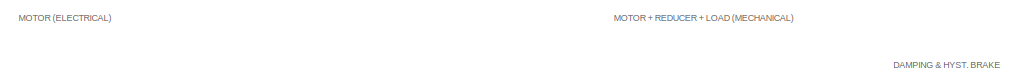
[diagram: root canvas - part 1/5, top center region]
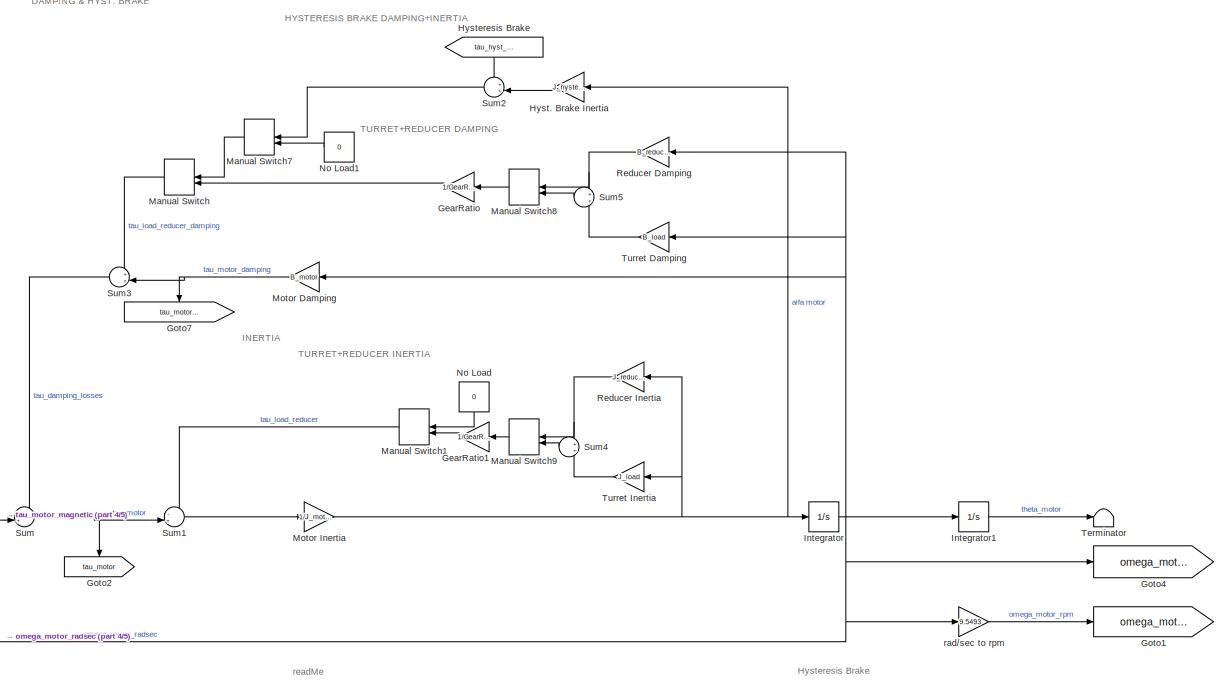
[diagram: root canvas - part 2/5, middle right region]
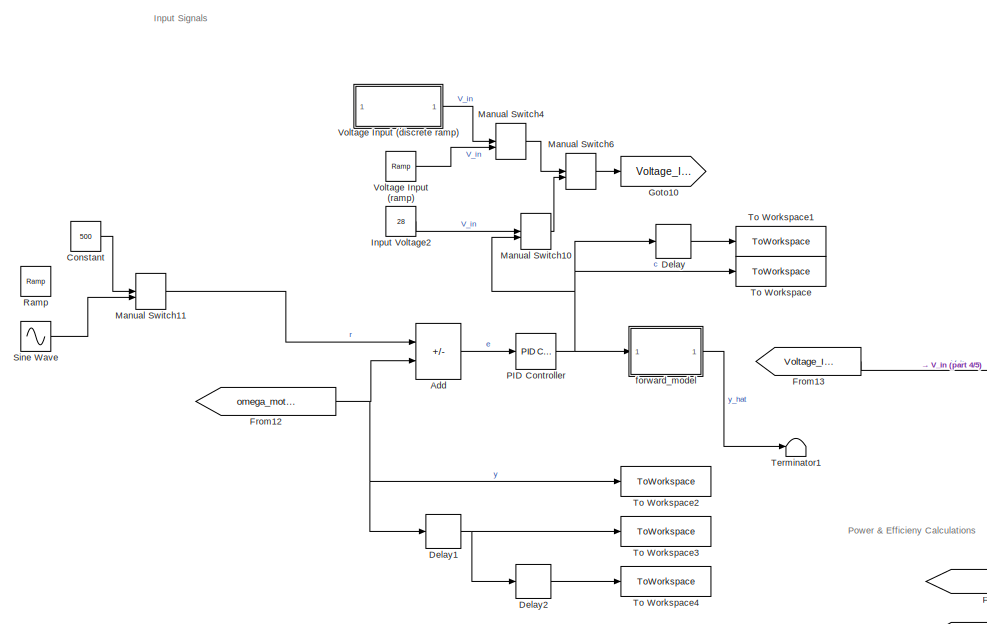
[diagram: root canvas - part 3/5, middle left region]
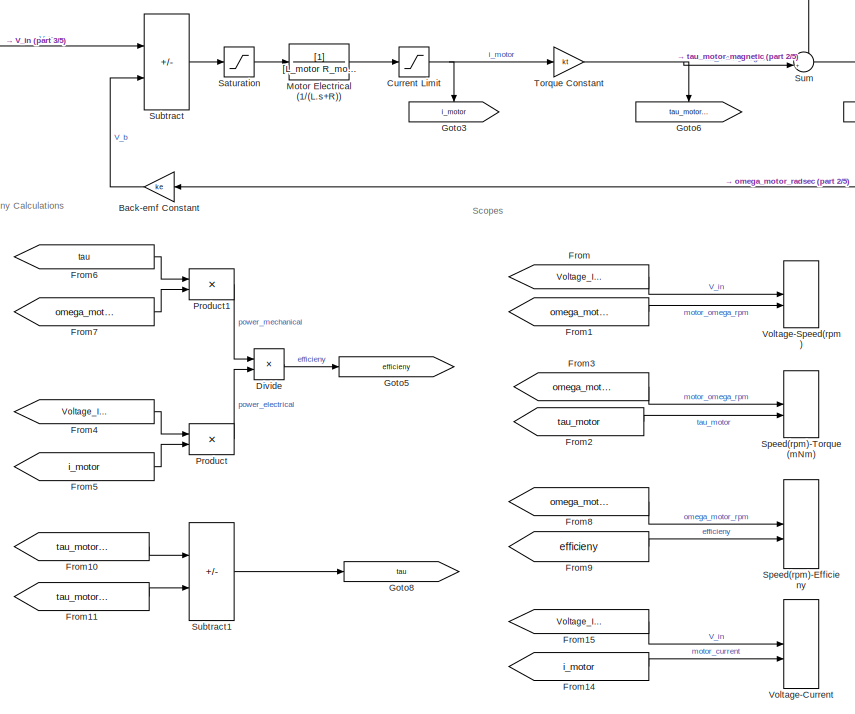
[diagram: root canvas - part 4/5, bottom center region]
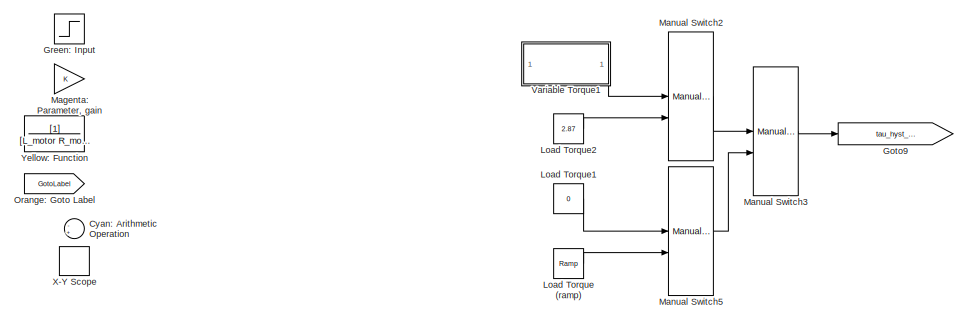
[diagram: root canvas - part 5/5, bottom right region]
MODEL slx_727cee5a9f21
KIND model
CONFIG AbsTol = auto
CONFIG EnableMultiTasking = off
CONFIG FixedStep = auto
CONFIG MaxStep = auto
CONFIG MinStep = auto
CONFIG RelTol = 1e-3
CONFIG SampleTimeConstraint = Unconstrained
CONFIG SolverName = VariableStepAuto
CONFIG StartTime = 0.0
CONFIG StopTime = 10
BLOCK [Sum] Add
  IconShape = rectangular
  Inputs = +-
BLOCK [Gain] Back-emf Constant
  Gain = ke
  NameLocation = top
BLOCK [Constant] Constant
  Value = 500
BLOCK [Saturate] Current Limit
  LowerLimit = -80
  UpperLimit = 80
BLOCK [Sum] Cyan: Arithmetic Operation
  Inputs = -+|
  NameLocation = right
BLOCK [Delay] Delay
  DelayLength = 1
  InputPortMap = u0
  SampleTime = 0.01
BLOCK [Delay] Delay1
  DelayLength = 1
  InputPortMap = u0
  SampleTime = 0.01
BLOCK [Delay] Delay2
  DelayLength = 1
  InputPortMap = u0
  SampleTime = 0.01
BLOCK [Product] Divide
  Inputs = */
BLOCK [From] From
  GotoTag = Voltage_Input
BLOCK [From] From1
  GotoTag = omega_motor_rpm
BLOCK [From] From10
  GotoTag = tau_motor_magnetic
BLOCK [From] From11
  GotoTag = tau_motor_damping
BLOCK [From] From12
  GotoTag = omega_motor_radsec
BLOCK [From] From13
  GotoTag = Voltage_Input
BLOCK [From] From14
  GotoTag = i_motor
BLOCK [From] From15
  GotoTag = Voltage_Input
BLOCK [From] From2
  GotoTag = tau_motor
BLOCK [From] From3
  GotoTag = omega_motor_rpm
BLOCK [From] From4
  GotoTag = Voltage_Input
BLOCK [From] From5
  GotoTag = i_motor
BLOCK [From] From6
  GotoTag = tau
BLOCK [From] From7
  GotoTag = omega_motor_radsec
BLOCK [From] From8
  GotoTag = omega_motor_rpm
BLOCK [From] From9
  GotoTag = efficieny
BLOCK [Gain] GearRatio
  Gain = 1/GearRatio^2
BLOCK [Gain] GearRatio1
  Gain = 1/GearRatio^2
BLOCK [Goto] Goto1
  GotoTag = omega_motor_rpm
BLOCK [Goto] Goto10
  GotoTag = Voltage_Input
BLOCK [Goto] Goto2
  GotoTag = tau_motor
  NameLocation = left
BLOCK [Goto] Goto3
  GotoTag = i_motor
BLOCK [Goto] Goto4
  GotoTag = omega_motor_radsec
BLOCK [Goto] Goto5
  GotoTag = efficieny
BLOCK [Goto] Goto6
  GotoTag = tau_motor_magnetic
  NameLocation = left
BLOCK [Goto] Goto7
  GotoTag = tau_motor_damping
  NameLocation = left
BLOCK [Goto] Goto8
  GotoTag = tau
BLOCK [Goto] Goto9
  GotoTag = tau_hyst_brake
BLOCK [Step] Green: Input
  NameLocation = right
  SampleTime = 0
BLOCK [Gain] Hyst. Brake Inertia
  Gain = J_hysteresis_brake
BLOCK [From] Hysteresis Brake
  GotoTag = tau_hyst_brake
  NameLocation = top
BLOCK [Constant] Input Voltage2
  Value = 28
BLOCK [Integrator] Integrator
BLOCK [Integrator] Integrator1
BLOCK [Reference] Load Torque (ramp)  REF=simulink/Sources/Ramp
  SourceBlock = simulink/Sources/Ramp
  SourceType = Ramp
BLOCK [Constant] Load Torque1
  Value = 0
BLOCK [Constant] Load Torque2
  Value = 2.87
BLOCK [Gain] Magenta: Parameter, gain
  NameLocation = right
BLOCK [ManualSwitch] Manual Switch
  CurrentSetting = 0
  NameLocation = top
BLOCK [ManualSwitch] Manual Switch1
  CurrentSetting = 0
  NameLocation = top
BLOCK [ManualSwitch] Manual Switch10
  CurrentSetting = 0
BLOCK [ManualSwitch] Manual Switch11
BLOCK [ManualSwitch] Manual Switch2
  CurrentSetting = 0
BLOCK [ManualSwitch] Manual Switch3
BLOCK [ManualSwitch] Manual Switch4
  CurrentSetting = 0
BLOCK [ManualSwitch] Manual Switch5
BLOCK [ManualSwitch] Manual Switch6
  CurrentSetting = 0
BLOCK [ManualSwitch] Manual Switch7
  NameLocation = right
BLOCK [ManualSwitch] Manual Switch8
  CurrentSetting = 0
  NameLocation = top
BLOCK [ManualSwitch] Manual Switch9
  CurrentSetting = 0
  NameLocation = top
BLOCK [Gain] Motor Damping
  Gain = B_motor
BLOCK [TransferFcn] Motor Electrical (1//(L.s+R))
  Denominator = [L_motor R_motor]
BLOCK [Gain] Motor Inertia
  Gain = 1/J_motor
BLOCK [Constant] No Load
  NameLocation = right
  Value = 0
BLOCK [Constant] No Load1
  NameLocation = right
  Value = 0
BLOCK [Goto] Orange: Goto Label
  GotoTag = GotoLabel
  NameLocation = right
BLOCK [Reference] PID Controller  REF=slpidlib/PID Controller
  SourceBlock = slpidlib/PID Controller
  SourceType = PID 1dof
BLOCK [Product] Product
BLOCK [Product] Product1
BLOCK [Reference] Ramp  REF=simulink/Sources/Ramp
  SourceBlock = simulink/Sources/Ramp
  SourceType = Ramp
BLOCK [Gain] Reducer Damping
  Gain = B_reducer
BLOCK [Gain] Reducer Inertia
  Gain = J_reducer
BLOCK [Saturate] Saturation
  LowerLimit = -28
  UpperLimit = 28
BLOCK [Sin] Sine Wave
  Amplitude = 400
  SampleTime = 0
BLOCK [Record] Speed(rpm)-Efficieny
  CompatibilityTag = XY
  FileSettingsInternal = {"entries":[{"content":{"excelSettings":{"content":{},"type":"Streamout.ExcelSettings"}},"type":"Streamout.FileSettingStorage","uuid":"5ceb1766-4c77-4d68-bc5b-a68c05b999d6"}],"packageUris":["http://schema.mathworks.com/mf0/streamout_blocks/R2020a"],"version":"1.0"}
  Layout = [1 1]
  SignalsInternal = {"entries":[{"content":{"signals":[{"content":{"blockPath":["gtcs_math_v1/Speed(rpm)-Efficieny"],"channel":[],"dimensions":[1],"domain":"gtcs_math_v1/Speed(rpm)-Efficieny","lineColor":"#d95319","plots":[],"port":1,"sid":[],"signalID":761,"signalName":"omega_motor_rpm"},"type":"RecordBlkView.Signal","uuid":"6d182a02-5feb-48f3-9dd1-fc4c739d84c7"},{"content":{"blockPath":["gtcs_math_v1/Speed(rpm)-Eff...<+429ch>
  VisualizationBindings = {"xyplotplugin":{"info":[{"series":[],"subplotID":1}]}}
BLOCK [Record] Speed(rpm)-Torque(mNm)
  CompatibilityTag = XY
  FileSettingsInternal = {"entries":[{"content":{"excelSettings":{"content":{},"type":"Streamout.ExcelSettings"}},"type":"Streamout.FileSettingStorage","uuid":"fd18a3e1-7c27-470d-85cf-3c84a845ae30"}],"packageUris":["http://schema.mathworks.com/mf0/streamout_blocks/R2020a"],"version":"1.0"}
  Layout = [1 1]
  SignalsInternal = {"entries":[{"content":{"signals":[{"content":{"blockPath":["gtcs_math_v1/Speed(rpm)-Torque(mNm)"],"channel":[],"dimensions":[1],"domain":"gtcs_math_v1/Speed(rpm)-Torque(mNm)","lineColor":"#7e2f8e","plots":[],"port":1,"sid":[],"signalID":753,"signalName":"motor_omega_rpm"},"type":"RecordBlkView.Signal","uuid":"61d3b4c0-f085-4c37-bc40-0282be6f29b6"},{"content":{"blockPath":["gtcs_math_v1/Speed(rpm)...<+437ch>
  VisualizationBindings = {"xyplotplugin":{"info":[{"series":[],"subplotID":1}]}}
BLOCK [Sum] Subtract
  IconShape = rectangular
  Inputs = +-
BLOCK [Sum] Subtract1
  IconShape = rectangular
  Inputs = +-
BLOCK [Sum] Sum
  Inputs = -+|
BLOCK [Sum] Sum1
  Inputs = -+|
BLOCK [Sum] Sum2
  Inputs = ++|
  NameLocation = top
BLOCK [Sum] Sum3
  Inputs = ++|
  NameLocation = top
BLOCK [Sum] Sum4
  NameLocation = top
BLOCK [Sum] Sum5
  NameLocation = top
BLOCK [Terminator] Terminator
BLOCK [Terminator] Terminator1
BLOCK [ToWorkspace] To Workspace
  FixptAsFi = on
  MaxDataPoints = inf
  SampleTime = 0.01
  VariableName = c
BLOCK [ToWorkspace] To Workspace1
  FixptAsFi = on
  MaxDataPoints = inf
  SampleTime = 0.01
  VariableName = c1
BLOCK [ToWorkspace] To Workspace2
  FixptAsFi = on
  MaxDataPoints = inf
  SampleTime = 0.01
  VariableName = y
BLOCK [ToWorkspace] To Workspace3
  FixptAsFi = on
  MaxDataPoints = inf
  SampleTime = 0.01
  VariableName = y_pre
BLOCK [ToWorkspace] To Workspace4
  FixptAsFi = on
  MaxDataPoints = inf
  SampleTime = 0.01
  VariableName = y_pre_pre
BLOCK [Gain] Torque Constant
  Gain = kt
BLOCK [Gain] Turret Damping
  Gain = B_load
BLOCK [Gain] Turret Inertia
  Gain = J_load
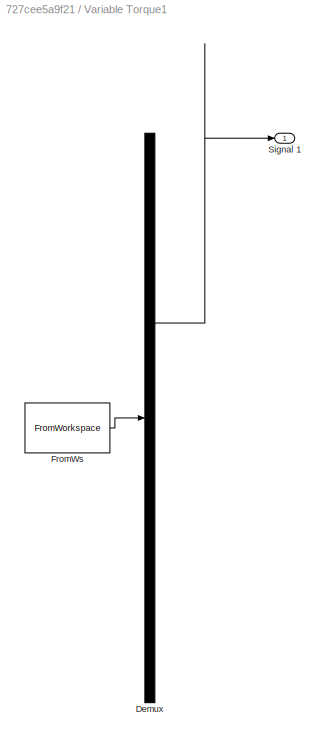
BLOCK [SubSystem] Variable Torque1
  ClipboardFcn = sigbuilder_block('clipboard');
  CloseFcn = sigbuilder_block('close');
  ContinueFcn = sigbuilder_block('continue');
  CopyFcn = sigbuilder_block('copy');
  DeleteFcn = sigbuilder_block('delete');
  LoadFcn = sigbuilder_block('load');
  MaskHideContents = on
  ModelCloseFcn = sigbuilder_block('modelClose');
  NameChangeFcn = sigbuilder_block('namechange');
  OpenFcn = sigbuilder_block('open',[0 36 1440 716.25 ]);
  PauseFcn = sigbuilder_block('pause');
  PreSaveFcn = sigbuilder_block('preSave');
  StartFcn = sigbuilder_block('start');
  StopFcn = sigbuilder_block('stop');
  Tag = STV Subsys
BLOCK [Demux] Variable Torque1/Demux
  DisplayOption = none
  Outputs = 1
  Tag = STV Demux
BLOCK [FromWorkspace] Variable Torque1/FromWs
  Tag = STV FromWs
  VariableName = tuvar
BLOCK [Outport] Variable Torque1/Signal 1
  Tag = STV Outport
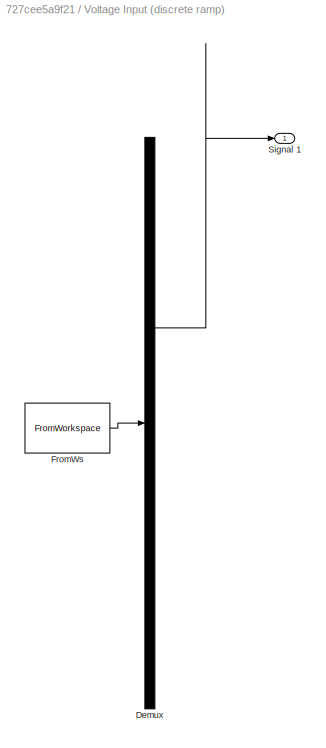
BLOCK [SubSystem] Voltage Input (discrete ramp)
  ClipboardFcn = sigbuilder_block('clipboard');
  CloseFcn = sigbuilder_block('close');
  ContinueFcn = sigbuilder_block('continue');
  CopyFcn = sigbuilder_block('copy');
  DeleteFcn = sigbuilder_block('delete');
  LoadFcn = sigbuilder_block('load');
  MaskHideContents = on
  ModelCloseFcn = sigbuilder_block('modelClose');
  NameChangeFcn = sigbuilder_block('namechange');
  OpenFcn = sigbuilder_block('open',[0.75 36.75 718.5 709.5 ]);
  PauseFcn = sigbuilder_block('pause');
  PreSaveFcn = sigbuilder_block('preSave');
  StartFcn = sigbuilder_block('start');
  StopFcn = sigbuilder_block('stop');
  Tag = STV Subsys
BLOCK [Demux] Voltage Input (discrete ramp)/Demux
  DisplayOption = none
  Outputs = 1
  Tag = STV Demux
BLOCK [FromWorkspace] Voltage Input (discrete ramp)/FromWs
  Tag = STV FromWs
  VariableName = tuvar
BLOCK [Outport] Voltage Input (discrete ramp)/Signal 1
  Tag = STV Outport
BLOCK [Reference] Voltage Input (ramp)  REF=simulink/Sources/Ramp
  SourceBlock = simulink/Sources/Ramp
  SourceType = Ramp
BLOCK [Record] Voltage-Current
  CompatibilityTag = XY
  FileSettingsInternal = {"entries":[{"content":{"excelSettings":{"content":{},"type":"Streamout.ExcelSettings"}},"type":"Streamout.FileSettingStorage","uuid":"c1f11984-e9ff-41c6-9b03-641b67f8d55f"}],"packageUris":["http://schema.mathworks.com/mf0/streamout_blocks/R2020a"],"version":"1.0"}
  Layout = [1 1]
  SignalsInternal = {"entries":[{"content":{"signals":[{"content":{"blockPath":["gtcs_math_v1/Voltage-Current"],"channel":[],"dimensions":[1],"domain":"gtcs_math_v1/Voltage-Current","lineColor":"#64d413","plots":[],"port":1,"sid":[],"signalID":737,"signalName":"V_in"},"type":"RecordBlkView.Signal","uuid":"6bf1e316-3e80-4ccb-9077-63da5d7ffe28"},{"content":{"blockPath":["gtcs_math_v1/Voltage-Current"],"channel":[],"dim...<+402ch>
  VisualizationBindings = {"xyplotplugin":{"info":[{"series":[],"subplotID":1}]}}
BLOCK [Record] Voltage-Speed(rpm)
  CompatibilityTag = XY
  FileSettingsInternal = {"entries":[{"content":{"excelSettings":{"content":{},"type":"Streamout.ExcelSettings"}},"type":"Streamout.FileSettingStorage","uuid":"59ffcc84-2ca6-4e0b-9cea-5daa768fe9a7"}],"packageUris":["http://schema.mathworks.com/mf0/streamout_blocks/R2020a"],"version":"1.0"}
  Layout = [1 1]
  SignalsInternal = {"entries":[{"content":{"signals":[{"content":{"blockPath":["gtcs_math_v1/Voltage-Speed(rpm)"],"channel":[],"dimensions":[1],"domain":"gtcs_math_v1/Voltage-Speed(rpm)","lineColor":"#fe330a","plots":[],"port":1,"sid":[],"signalID":729,"signalName":"V_in"},"type":"RecordBlkView.Signal","uuid":"0be176e8-9078-4797-8299-9f8d682af79f"},{"content":{"blockPath":["gtcs_math_v1/Voltage-Speed(rpm)"],"channel...<+416ch>
  VisualizationBindings = {"xyplotplugin":{"info":[{"series":[],"subplotID":1}]}}
BLOCK [Record] X-Y Scope
  CompatibilityTag = XY
  FileSettingsInternal = {"entries":[{"content":{"excelSettings":{"content":{},"type":"Streamout.ExcelSettings"}},"type":"Streamout.FileSettingStorage","uuid":"943fa2fc-e112-4a03-8195-d1d29e8222db"}],"packageUris":["http://schema.mathworks.com/mf0/streamout_blocks/R2020a"],"version":"1.0"}
  Layout = [1 1]
  NameLocation = right
  SignalsInternal = {"entries":[{"content":{"signals":[{"content":{"blockPath":["gtcs_math_v1/X-Y Scope"],"channel":[],"dimensions":[1],"domain":"gtcs_math_v1/X-Y Scope","lineColor":"#7e2f8e","plots":[],"port":1,"sid":[],"signalID":745},"type":"RecordBlkView.Signal","uuid":"e93512a9-84e9-4859-a5ce-8b5415996e34"},{"content":{"blockPath":["gtcs_math_v1/X-Y Scope"],"channel":[],"dimensions":[1],"domain":"gtcs_math_v1/X-...<+329ch>
  VisualizationBindings = {"xyplotplugin":{"info":[{"series":[],"subplotID":1}]}}
BLOCK [TransferFcn] Yellow: Function
  Denominator = [L_motor R_motor]
  NameLocation = right
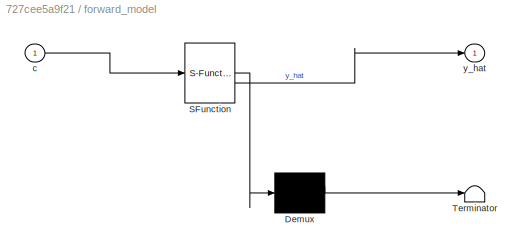
BLOCK [SubSystem] forward_model
  ErrorFcn = Stateflow.Translate.translate
  LibrarySourceBlock = simulink/User-Defined\nFunctions/MATLAB Function
  PermitHierarchicalResolution = ExplicitOnly
  SFBlockType = MATLAB Function
  TreatAsAtomicUnit = on
BLOCK [Demux] forward_model/ Demux 
  Outputs = 1
BLOCK [S-Function] forward_model/ SFunction 
  EnableBusSupport = on
  FunctionName = sf_sfun
  PortCounts = [1 2]
  SFcnIsStateOwnerBlock = off
  SFunctionDeploymentMode = off
  Tag = Stateflow S-Function 2
BLOCK [Terminator] forward_model/ Terminator 
BLOCK [Inport] forward_model/c
BLOCK [Outport] forward_model/y_hat
BLOCK [Gain] rad//sec to rpm
  Gain = 9.5493
ANNOTATION (root): DAMPING & HYST. BRAKE
ANNOTATION (root): HYSTERESIS BRAKE DAMPING+INERTIA
ANNOTATION (root): Hysteresis Brake
ANNOTATION (root): INERTIA
ANNOTATION (root): Input Signals
ANNOTATION (root): MOTOR (ELECTRICAL)
ANNOTATION (root): MOTOR + REDUCER + LOAD (MECHANICAL)
ANNOTATION (root): Power & Efficieny Calculations
ANNOTATION (root): Scopes
ANNOTATION (root): TURRET+REDUCER DAMPING
ANNOTATION (root): TURRET+REDUCER INERTIA
ANNOTATION (root): readMe
LINE Add:1 -> PID Controller:1
LINE Back-emf Constant:1 -> Subtract:2
LINE Constant:1 -> Manual Switch11:1
NET Current Limit:1 -> Goto3:1, Torque Constant:1
NET Delay1:1 -> Delay2:1, To Workspace3:1
LINE Delay2:1 -> To Workspace4:1
LINE Delay:1 -> To Workspace1:1
LINE Divide:1 -> Goto5:1
LINE From10:1 -> Subtract1:1
LINE From11:1 -> Subtract1:2
NET From12:1 -> Add:2, Delay1:1, To Workspace2:1
LINE From13:1 -> Subtract:1
LINE From14:1 -> Voltage-Current:2
LINE From15:1 -> Voltage-Current:1
LINE From1:1 -> Voltage-Speed(rpm):2
LINE From2:1 -> Speed(rpm)-Torque(mNm):2
LINE From3:1 -> Speed(rpm)-Torque(mNm):1
LINE From4:1 -> Product:1
LINE From5:1 -> Product:2
LINE From6:1 -> Product1:1
LINE From7:1 -> Product1:2
LINE From8:1 -> Speed(rpm)-Efficieny:1
LINE From9:1 -> Speed(rpm)-Efficieny:2
LINE From:1 -> Voltage-Speed(rpm):1
LINE GearRatio1:1 -> Manual Switch1:2
LINE GearRatio:1 -> Manual Switch:2
LINE Hyst. Brake Inertia:1 -> Sum2:2
LINE Hysteresis Brake:1 -> Sum2:1
LINE Input Voltage2:1 -> Manual Switch10:1
LINE Integrator1:1 -> Terminator:1
NET Integrator:1 -> Back-emf Constant:1, Goto4:1, Integrator1:1, Motor Damping:1, Reducer Damping:1, Turret Damping:1, rad//sec to rpm:1
LINE Load Torque (ramp):1 -> Manual Switch5:2
LINE Load Torque1:1 -> Manual Switch5:1
LINE Load Torque2:1 -> Manual Switch2:2
LINE Manual Switch10:1 -> Manual Switch6:2
LINE Manual Switch11:1 -> Add:1
LINE Manual Switch1:1 -> Sum1:1
LINE Manual Switch2:1 -> Manual Switch3:1
LINE Manual Switch3:1 -> Goto9:1
LINE Manual Switch4:1 -> Manual Switch6:1
LINE Manual Switch5:1 -> Manual Switch3:2
LINE Manual Switch6:1 -> Goto10:1
LINE Manual Switch7:1 -> Manual Switch:1
LINE Manual Switch8:1 -> GearRatio:1
LINE Manual Switch9:1 -> GearRatio1:1
LINE Manual Switch:1 -> Sum3:1
NET Motor Damping:1 -> Goto7:1, Sum3:2
LINE Motor Electrical (1//(L.s+R)):1 -> Current Limit:1
NET Motor Inertia:1 -> Hyst. Brake Inertia:1, Integrator:1, Reducer Inertia:1, Turret Inertia:1
LINE No Load1:1 -> Manual Switch7:2
LINE No Load:1 -> Manual Switch1:1
NET PID Controller:1 -> Delay:1, Manual Switch10:2, To Workspace:1, forward_model:1
LINE Product1:1 -> Divide:1
LINE Product:1 -> Divide:2
NET Reducer Damping:1 -> Manual Switch8:1, Sum5:1
NET Reducer Inertia:1 -> Manual Switch9:1, Sum4:1
LINE Saturation:1 -> Motor Electrical (1//(L.s+R)):1
LINE Sine Wave:1 -> Manual Switch11:2
LINE Subtract1:1 -> Goto8:1
LINE Subtract:1 -> Saturation:1
LINE Sum1:1 -> Motor Inertia:1
LINE Sum2:1 -> Manual Switch7:1
LINE Sum3:1 -> Sum:1
LINE Sum4:1 -> Manual Switch9:2
LINE Sum5:1 -> Manual Switch8:2
NET Sum:1 -> Goto2:1, Sum1:2
NET Torque Constant:1 -> Goto6:1, Sum:2
LINE Turret Damping:1 -> Sum5:2
LINE Turret Inertia:1 -> Sum4:2
LINE Variable Torque1:1 -> Manual Switch2:1
LINE Voltage Input (discrete ramp):1 -> Manual Switch4:1
LINE Voltage Input (ramp):1 -> Manual Switch4:2
LINE forward_model:1 -> Terminator1:1
LINE rad//sec to rpm:1 -> Goto1:1
note: NET lines group one-source signal fan-out (src -> all destinations, sorted); 1:1 wires keep LINE
CHART forward_model states=1 transitions=1
  STATE_LABEL 'eML_blk_kernel()'
  STATE_LABEL 'SCRIPT:\nfunction y_hat = fcn(c)\n    Phi = [0.3935   21.8693    0.4187   -0.7620    0.5025    0.0944;\n          -0.3620   21.9286    0.5094   -0.0033   -0.4898   -0.7228;\n           0.9043   20.7120   -0.4479    0.9195    0.0119   -0.7014;\n          -0.9273   21.3178    0.3594   -0.3192    0.3982   -0.4850;\n          -0.1187   21.2294    0.3102    0.1705    0.7818    0.6814;\n          10.0202    8....<+279ch>'
CHART  states=0 transitions=0
